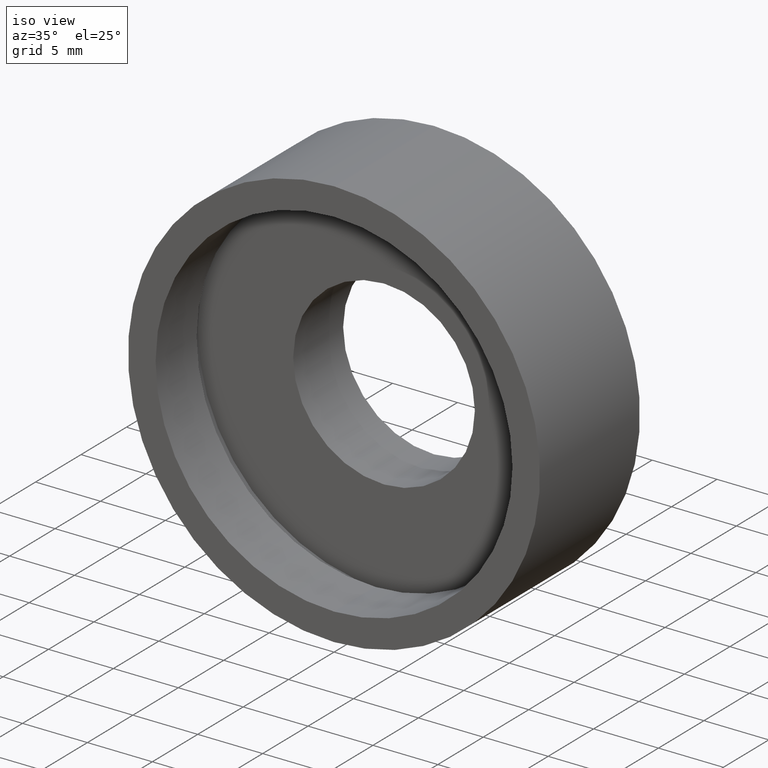
[diagram: clean part render]
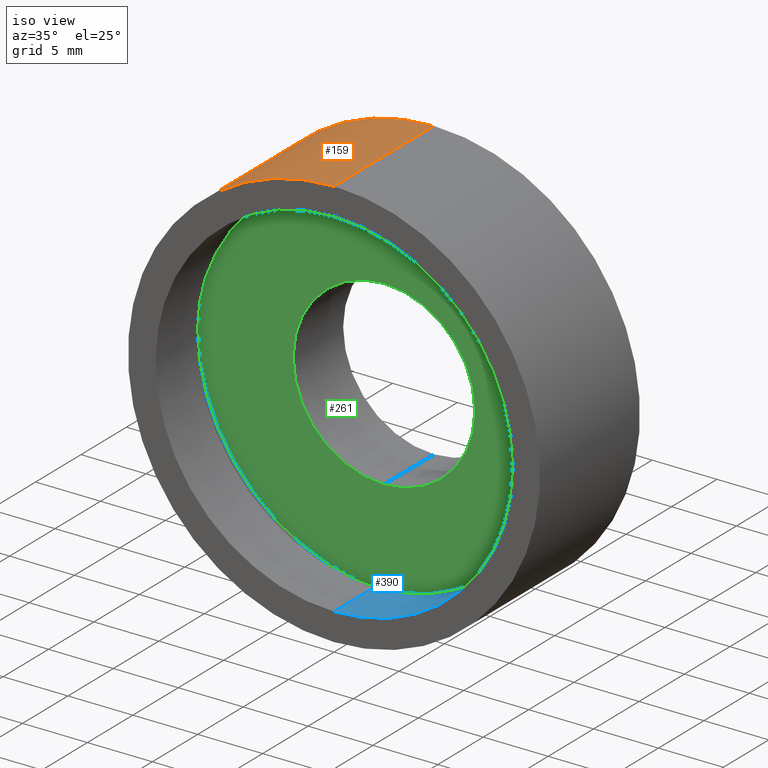
[diagram: same view with three faces highlighted in distinct colors, each labeled with its STEP entity id]
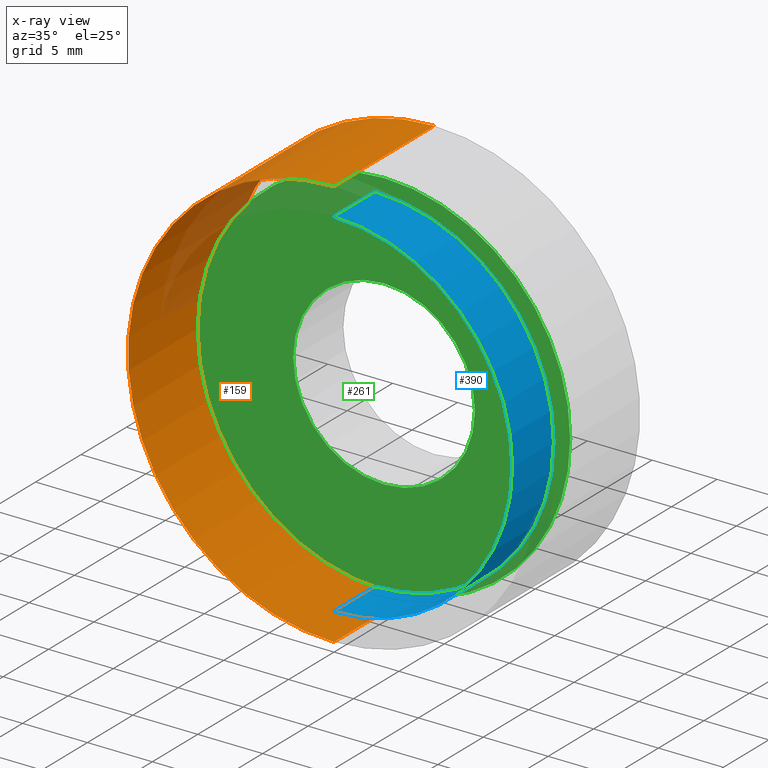
[diagram: x-ray of the same camera — body ghosted, the three highlighted faces saturated]
A machine part, iso view with three faces highlighted in distinct colors.
The next image is the same camera in x-ray (body ghosted, the three faces saturated) — at least one of them is partly hidden behind the body in this view.
Their STEP definitions:

[orange] entity #159 — the highlighted cylindrical surface (partial cylindrical patch) has radius 15.875 mm, axis along (-0, 1, -0).
#3 = VERTEX_POINT ( 'NONE', #223 ) ;
#12 = ORIENTED_EDGE ( 'NONE', *, *, #311, .T. ) ;
#19 = VERTEX_POINT ( 'NONE', #143 ) ;
#26 = DIRECTION ( 'NONE',  ( 0.0000000000000000000, 0.0000000000000000000, 1.000000000000000000 ) ) ;
#34 = ORIENTED_EDGE ( 'NONE', *, *, #418, .F. ) ;
#43 = DIRECTION ( 'NONE',  ( -0.0000000000000000000, 1.000000000000000000, -0.0000000000000000000 ) ) ;
#49 = CARTESIAN_POINT ( 'NONE',  ( 0.0000000000000000000, 10.99999999999999600, 0.0000000000000000000 ) ) ;
#61 = LINE ( 'NONE', #64, #286 ) ;
#62 = EDGE_CURVE ( 'NONE', #370, #3, #115, .T. ) ;
#64 = CARTESIAN_POINT ( 'NONE',  ( 0.0000000000000000000, 60.02082041425541100, 15.87500000000000400 ) ) ;
#70 = FACE_OUTER_BOUND ( 'NONE', #288, .T. ) ;
#100 = CARTESIAN_POINT ( 'NONE',  ( 1.944126793646423600E-015, 0.0000000000000000000, -15.87500000000000400 ) ) ;
#115 = CIRCLE ( 'NONE', #339, 15.87500000000000400 ) ;
#139 = CARTESIAN_POINT ( 'NONE',  ( 1.944126793646423600E-015, 60.02082041425541100, -15.87500000000000400 ) ) ;
#143 = CARTESIAN_POINT ( 'NONE',  ( 0.0000000000000000000, 0.0000000000000000000, 15.87500000000000400 ) ) ;
#156 = DIRECTION ( 'NONE',  ( 0.0000000000000000000, 0.0000000000000000000, 1.000000000000000000 ) ) ;
#159 = ADVANCED_FACE ( 'NONE', ( #70 ), #172, .T. ) ;
#172 = CYLINDRICAL_SURFACE ( 'NONE', #263, 15.87500000000000400 ) ;
#191 = DIRECTION ( 'NONE',  ( 0.0000000000000000000, 0.0000000000000000000, 1.000000000000000000 ) ) ;
#205 = AXIS2_PLACEMENT_3D ( 'NONE', #368, #358, #191 ) ;
#223 = CARTESIAN_POINT ( 'NONE',  ( 0.0000000000000000000, 10.99999999999999600, 15.87500000000000400 ) ) ;
#225 = DIRECTION ( 'NONE',  ( -0.0000000000000000000, 1.000000000000000000, -0.0000000000000000000 ) ) ;
#237 = VECTOR ( 'NONE', #431, 1000.000000000000000 ) ;
#238 = CARTESIAN_POINT ( 'NONE',  ( 0.0000000000000000000, 60.02082041425541100, 0.0000000000000000000 ) ) ;
#254 = CARTESIAN_POINT ( 'NONE',  ( 1.944126793646423600E-015, 10.99999999999999600, -15.87500000000000400 ) ) ;
#263 = AXIS2_PLACEMENT_3D ( 'NONE', #238, #399, #26 ) ;
#286 = VECTOR ( 'NONE', #225, 1000.000000000000000 ) ;
#288 = EDGE_LOOP ( 'NONE', ( #34, #12, #348, #381 ) ) ;
#311 = EDGE_CURVE ( 'NONE', #415, #19, #327, .T. ) ;
#327 = CIRCLE ( 'NONE', #205, 15.87500000000000400 ) ;
#339 = AXIS2_PLACEMENT_3D ( 'NONE', #49, #43, #156 ) ;
#342 = LINE ( 'NONE', #139, #237 ) ;
#348 = ORIENTED_EDGE ( 'NONE', *, *, #429, .T. ) ;
#358 = DIRECTION ( 'NONE',  ( -0.0000000000000000000, 1.000000000000000000, -0.0000000000000000000 ) ) ;
#368 = CARTESIAN_POINT ( 'NONE',  ( 0.0000000000000000000, 0.0000000000000000000, 0.0000000000000000000 ) ) ;
#370 = VERTEX_POINT ( 'NONE', #254 ) ;
#381 = ORIENTED_EDGE ( 'NONE', *, *, #62, .F. ) ;
#399 = DIRECTION ( 'NONE',  ( -0.0000000000000000000, 1.000000000000000000, -0.0000000000000000000 ) ) ;
#415 = VERTEX_POINT ( 'NONE', #100 ) ;
#418 = EDGE_CURVE ( 'NONE', #415, #370, #342, .T. ) ;
#429 = EDGE_CURVE ( 'NONE', #19, #3, #61, .T. ) ;
#431 = DIRECTION ( 'NONE',  ( -0.0000000000000000000, 1.000000000000000000, -0.0000000000000000000 ) ) ;

[blue] entity #390 — the highlighted cylindrical surface (partial cylindrical patch) has radius 13.75 mm, axis along (-0, 1, -0).
#30 = CARTESIAN_POINT ( 'NONE',  ( 1.683889348827611600E-015, 0.0000000000000000000, -13.75000000000000700 ) ) ;
#46 = CARTESIAN_POINT ( 'NONE',  ( 0.0000000000000000000, 4.499999999999997300, 0.0000000000000000000 ) ) ;
#60 = ORIENTED_EDGE ( 'NONE', *, *, #316, .F. ) ;
#69 = VERTEX_POINT ( 'NONE', #104 ) ;
#72 = FACE_OUTER_BOUND ( 'NONE', #90, .T. ) ;
#83 = EDGE_CURVE ( 'NONE', #349, #69, #217, .T. ) ;
#84 = DIRECTION ( 'NONE',  ( 0.0000000000000000000, 0.0000000000000000000, 1.000000000000000000 ) ) ;
#88 = CARTESIAN_POINT ( 'NONE',  ( 1.683889348827611600E-015, 4.499999999999997300, -13.75000000000000700 ) ) ;
#90 = EDGE_LOOP ( 'NONE', ( #60, #341, #387, #182 ) ) ;
#104 = CARTESIAN_POINT ( 'NONE',  ( 0.0000000000000000000, 4.499999999999997300, 13.75000000000000700 ) ) ;
#106 = CYLINDRICAL_SURFACE ( 'NONE', #322, 13.75000000000000700 ) ;
#114 = EDGE_CURVE ( 'NONE', #69, #241, #183, .T. ) ;
#126 = AXIS2_PLACEMENT_3D ( 'NONE', #174, #299, #382 ) ;
#150 = DIRECTION ( 'NONE',  ( -0.0000000000000000000, 1.000000000000000000, -0.0000000000000000000 ) ) ;
#174 = CARTESIAN_POINT ( 'NONE',  ( 0.0000000000000000000, 0.0000000000000000000, 0.0000000000000000000 ) ) ;
#182 = ORIENTED_EDGE ( 'NONE', *, *, #114, .T. ) ;
#183 = CIRCLE ( 'NONE', #404, 13.75000000000000700 ) ;
#185 = CIRCLE ( 'NONE', #126, 13.75000000000000700 ) ;
#217 = LINE ( 'NONE', #398, #434 ) ;
#221 = VERTEX_POINT ( 'NONE', #30 ) ;
#241 = VERTEX_POINT ( 'NONE', #88 ) ;
#270 = DIRECTION ( 'NONE',  ( -0.0000000000000000000, 1.000000000000000000, -0.0000000000000000000 ) ) ;
#272 = LINE ( 'NONE', #383, #308 ) ;
#299 = DIRECTION ( 'NONE',  ( -0.0000000000000000000, 1.000000000000000000, -0.0000000000000000000 ) ) ;
#308 = VECTOR ( 'NONE', #270, 1000.000000000000000 ) ;
#316 = EDGE_CURVE ( 'NONE', #221, #241, #272, .T. ) ;
#322 = AXIS2_PLACEMENT_3D ( 'NONE', #359, #150, #406 ) ;
#332 = CARTESIAN_POINT ( 'NONE',  ( 0.0000000000000000000, 0.0000000000000000000, 13.75000000000000700 ) ) ;
#341 = ORIENTED_EDGE ( 'NONE', *, *, #389, .F. ) ;
#343 = DIRECTION ( 'NONE',  ( -0.0000000000000000000, 1.000000000000000000, -0.0000000000000000000 ) ) ;
#349 = VERTEX_POINT ( 'NONE', #332 ) ;
#359 = CARTESIAN_POINT ( 'NONE',  ( 0.0000000000000000000, 60.02082041425541100, 0.0000000000000000000 ) ) ;
#382 = DIRECTION ( 'NONE',  ( 0.0000000000000000000, 0.0000000000000000000, 1.000000000000000000 ) ) ;
#383 = CARTESIAN_POINT ( 'NONE',  ( 1.683889348827611600E-015, 60.02082041425541100, -13.75000000000000700 ) ) ;
#387 = ORIENTED_EDGE ( 'NONE', *, *, #83, .T. ) ;
#389 = EDGE_CURVE ( 'NONE', #349, #221, #185, .T. ) ;
#390 = ADVANCED_FACE ( 'NONE', ( #72 ), #106, .F. ) ;
#398 = CARTESIAN_POINT ( 'NONE',  ( 0.0000000000000000000, 60.02082041425541100, 13.75000000000000700 ) ) ;
#404 = AXIS2_PLACEMENT_3D ( 'NONE', #46, #343, #84 ) ;
#406 = DIRECTION ( 'NONE',  ( 0.0000000000000000000, 0.0000000000000000000, 1.000000000000000000 ) ) ;
#417 = DIRECTION ( 'NONE',  ( -0.0000000000000000000, 1.000000000000000000, -0.0000000000000000000 ) ) ;
#434 = VECTOR ( 'NONE', #417, 1000.000000000000000 ) ;

[green] entity #261 — the highlighted planar face has unit normal (-0, 1, 0).
#13 = CIRCLE ( 'NONE', #319, 7.000000000000006200 ) ;
#14 = EDGE_CURVE ( 'NONE', #45, #85, #335, .T. ) ;
#17 = DIRECTION ( 'NONE',  ( 0.0000000000000000000, 0.0000000000000000000, 1.000000000000000000 ) ) ;
#22 = CARTESIAN_POINT ( 'NONE',  ( 14.35000000000000500, 5.499999999999998200, 0.0000000000000000000 ) ) ;
#27 = ORIENTED_EDGE ( 'NONE', *, *, #102, .T. ) ;
#33 = CARTESIAN_POINT ( 'NONE',  ( 0.0000000000000000000, 5.499999999999998200, 0.0000000000000000000 ) ) ;
#44 = DIRECTION ( 'NONE',  ( -0.0000000000000000000, 1.000000000000000000, 0.0000000000000000000 ) ) ;
#45 = VERTEX_POINT ( 'NONE', #292 ) ;
#48 = VERTEX_POINT ( 'NONE', #97 ) ;
#66 = AXIS2_PLACEMENT_3D ( 'NONE', #22, #44, #67 ) ;
#67 = DIRECTION ( 'NONE',  ( 0.0000000000000000000, 0.0000000000000000000, 1.000000000000000000 ) ) ;
#68 = PLANE ( 'NONE',  #66 ) ;
#75 = CARTESIAN_POINT ( 'NONE',  ( 1.757368156776452800E-015, 5.499999999999998200, -14.35000000000000500 ) ) ;
#85 = VERTEX_POINT ( 'NONE', #75 ) ;
#97 = CARTESIAN_POINT ( 'NONE',  ( 0.0000000000000000000, 5.499999999999998200, 7.000000000000006200 ) ) ;
#98 = DIRECTION ( 'NONE',  ( -0.0000000000000000000, 1.000000000000000000, -0.0000000000000000000 ) ) ;
#102 = EDGE_CURVE ( 'NONE', #169, #48, #326, .T. ) ;
#118 = ORIENTED_EDGE ( 'NONE', *, *, #179, .F. ) ;
#123 = ORIENTED_EDGE ( 'NONE', *, *, #14, .F. ) ;
#124 = FACE_OUTER_BOUND ( 'NONE', #277, .T. ) ;
#128 = CARTESIAN_POINT ( 'NONE',  ( 8.572527594031480100E-016, 5.499999999999998200, -7.000000000000006200 ) ) ;
#136 = EDGE_LOOP ( 'NONE', ( #212, #27 ) ) ;
#169 = VERTEX_POINT ( 'NONE', #128 ) ;
#179 = EDGE_CURVE ( 'NONE', #85, #45, #331, .T. ) ;
#197 = DIRECTION ( 'NONE',  ( -0.0000000000000000000, 1.000000000000000000, -0.0000000000000000000 ) ) ;
#204 = DIRECTION ( 'NONE',  ( 0.0000000000000000000, 0.0000000000000000000, 1.000000000000000000 ) ) ;
#212 = ORIENTED_EDGE ( 'NONE', *, *, #375, .T. ) ;
#215 = AXIS2_PLACEMENT_3D ( 'NONE', #384, #98, #204 ) ;
#220 = CARTESIAN_POINT ( 'NONE',  ( 0.0000000000000000000, 5.499999999999998200, 0.0000000000000000000 ) ) ;
#236 = DIRECTION ( 'NONE',  ( 0.0000000000000000000, 0.0000000000000000000, 1.000000000000000000 ) ) ;
#251 = AXIS2_PLACEMENT_3D ( 'NONE', #33, #317, #345 ) ;
#261 = ADVANCED_FACE ( 'NONE', ( #124, #279 ), #68, .F. ) ;
#277 = EDGE_LOOP ( 'NONE', ( #123, #118 ) ) ;
#279 = FACE_BOUND ( 'NONE', #136, .T. ) ;
#290 = AXIS2_PLACEMENT_3D ( 'NONE', #220, #306, #236 ) ;
#292 = CARTESIAN_POINT ( 'NONE',  ( 0.0000000000000000000, 5.499999999999998200, 14.35000000000000500 ) ) ;
#306 = DIRECTION ( 'NONE',  ( -0.0000000000000000000, 1.000000000000000000, -0.0000000000000000000 ) ) ;
#317 = DIRECTION ( 'NONE',  ( -0.0000000000000000000, 1.000000000000000000, -0.0000000000000000000 ) ) ;
#319 = AXIS2_PLACEMENT_3D ( 'NONE', #392, #197, #17 ) ;
#326 = CIRCLE ( 'NONE', #290, 7.000000000000006200 ) ;
#331 = CIRCLE ( 'NONE', #215, 14.35000000000000500 ) ;
#335 = CIRCLE ( 'NONE', #251, 14.35000000000000500 ) ;
#345 = DIRECTION ( 'NONE',  ( 0.0000000000000000000, 0.0000000000000000000, 1.000000000000000000 ) ) ;
#375 = EDGE_CURVE ( 'NONE', #48, #169, #13, .T. ) ;
#384 = CARTESIAN_POINT ( 'NONE',  ( 0.0000000000000000000, 5.499999999999998200, 0.0000000000000000000 ) ) ;
#392 = CARTESIAN_POINT ( 'NONE',  ( 0.0000000000000000000, 5.499999999999998200, 0.0000000000000000000 ) ) ;